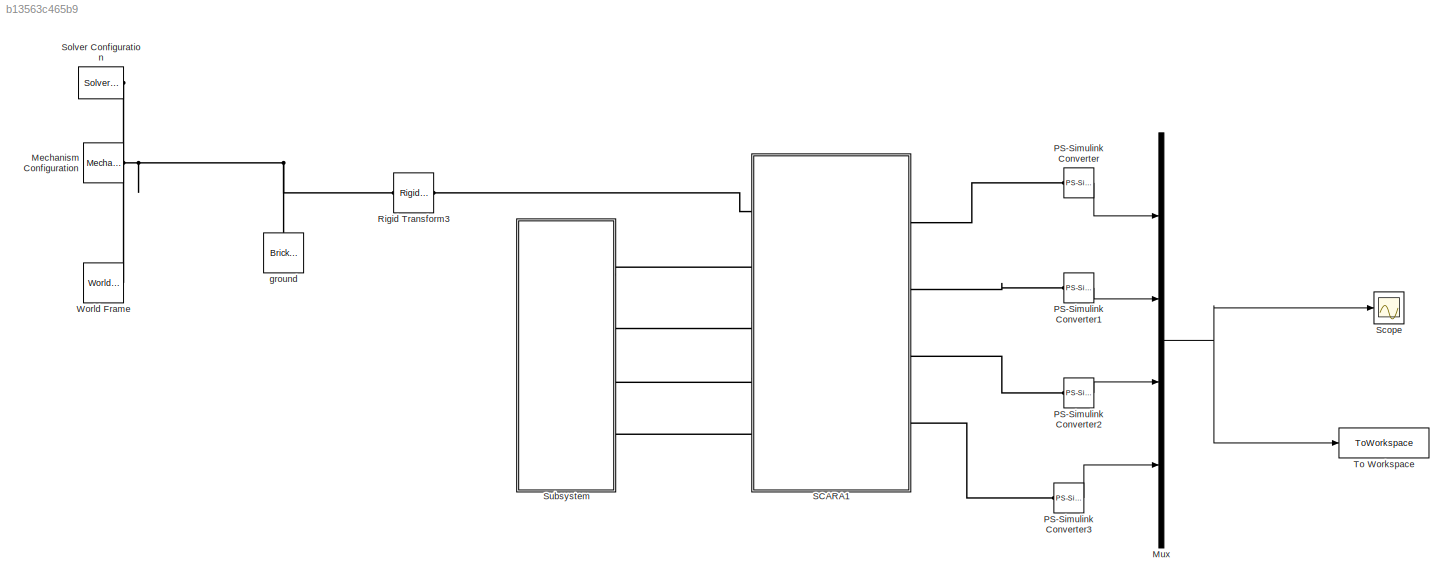
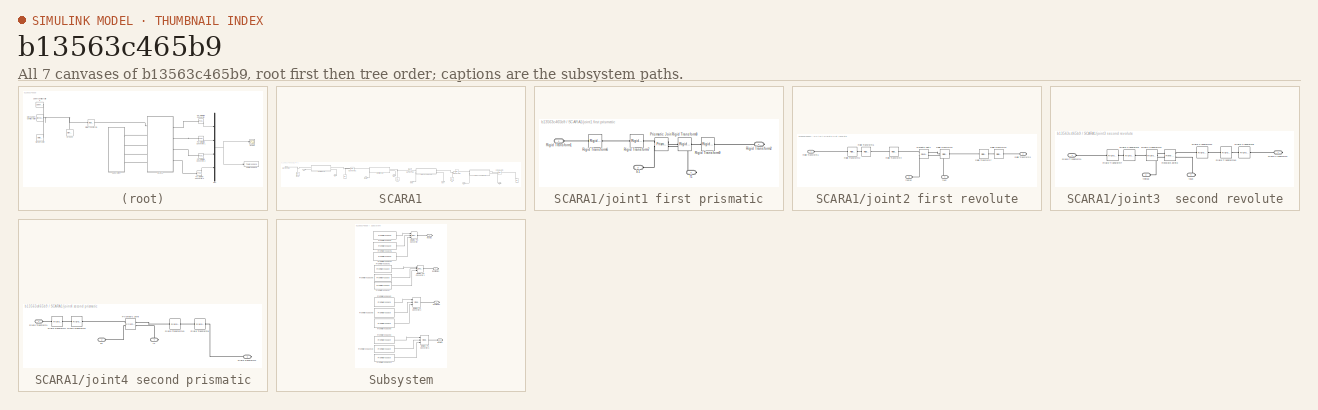
[diagram: thumbnail index - all 7 canvases of the model, root first then tree order]
MODEL slx_b13563c465b9
KIND model
CONFIG AbsTol = auto
CONFIG EnableMultiTasking = off
CONFIG FixedStep = 0.001
CONFIG MaxStep = auto
CONFIG MinStep = auto
CONFIG RelTol = 1e-3
CONFIG SampleTimeConstraint = Unconstrained
CONFIG SolverName = VariableStepAuto
CONFIG StartTime = 0.0
CONFIG StopTime = tf
BLOCK [Reference] Mechanism Configuration  REF=sm_lib/Utilities/Mechanism
Configuration
  Ports = [0, 0, 0, 0, 0, 0, 1]
  SourceBlock = sm_lib/Utilities/Mechanism\nConfiguration
  SourceProductBaseCode = MS
  SourceType = Mechanism\nConfiguration
BLOCK [Mux] Mux
  DisplayOption = bar
  Ports = [4, 1]
BLOCK [Reference] PS-Simulink Converter  REF=nesl_utility/PS-Simulink
Converter
  Ports = [0, 1, 0, 0, 0, 1]
  SourceBlock = nesl_utility/PS-Simulink\nConverter
  SourceProductBaseCode = PW,SS
  SourceType = PS-Simulink\nConverter
BLOCK [Reference] PS-Simulink Converter1  REF=nesl_utility/PS-Simulink
Converter
  Ports = [0, 1, 0, 0, 0, 1]
  SourceBlock = nesl_utility/PS-Simulink\nConverter
  SourceProductBaseCode = PW,SS
  SourceType = PS-Simulink\nConverter
BLOCK [Reference] PS-Simulink Converter2  REF=nesl_utility/PS-Simulink
Converter
  Ports = [0, 1, 0, 0, 0, 1]
  SourceBlock = nesl_utility/PS-Simulink\nConverter
  SourceProductBaseCode = PW,SS
  SourceType = PS-Simulink\nConverter
BLOCK [Reference] PS-Simulink Converter3  REF=nesl_utility/PS-Simulink
Converter
  Ports = [0, 1, 0, 0, 0, 1]
  SourceBlock = nesl_utility/PS-Simulink\nConverter
  SourceProductBaseCode = PW,SS
  SourceType = PS-Simulink\nConverter
BLOCK [Reference] Rigid Transform3  REF=sm_lib/Frames and
Transforms/Rigid
Transform
  Ports = [0, 0, 0, 0, 0, 1, 1]
  SourceBlock = sm_lib/Frames and\nTransforms/Rigid\nTransform
  SourceProductBaseCode = MS
  SourceType = Rigid\nTransform
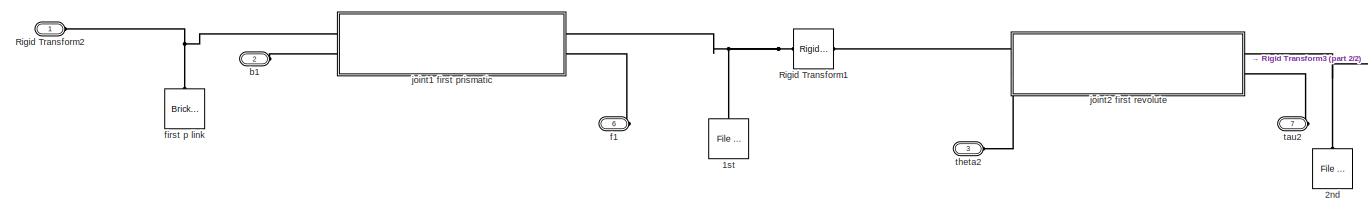
[diagram: SCARA1 - part 1/2, left side, full height]
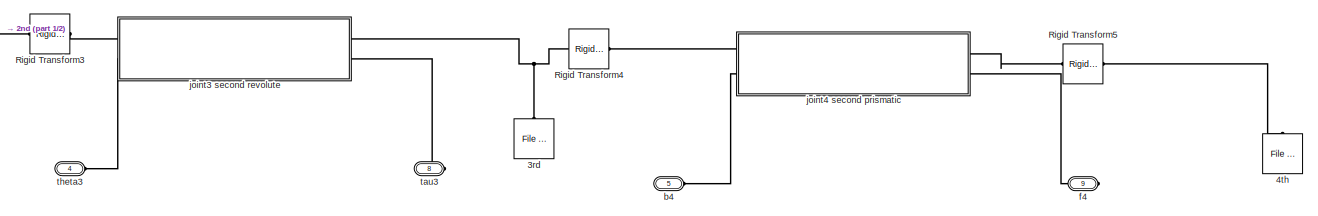
[diagram: SCARA1 - part 2/2, right side, full height]
BLOCK [SubSystem] SCARA1
  Ports = [0, 0, 0, 0, 0, 5, 4]
  RequestExecContextInheritance = off
BLOCK [Reference] SCARA1/1st  REF=sm_lib/Body Elements/File Solid
  NameLocation = right
  Ports = [0, 0, 0, 0, 0, 0, 1]
  SourceBlock = sm_lib/Body Elements/File Solid
  SourceProductBaseCode = MS
  SourceType = File Solid
BLOCK [Reference] SCARA1/2nd  REF=sm_lib/Body Elements/File Solid
  NameLocation = right
  Ports = [0, 0, 0, 0, 0, 0, 1]
  SourceBlock = sm_lib/Body Elements/File Solid
  SourceProductBaseCode = MS
  SourceType = File Solid
BLOCK [Reference] SCARA1/3rd  REF=sm_lib/Body Elements/File Solid
  NameLocation = right
  Ports = [0, 0, 0, 0, 0, 0, 1]
  SourceBlock = sm_lib/Body Elements/File Solid
  SourceProductBaseCode = MS
  SourceType = File Solid
BLOCK [Reference] SCARA1/4th  REF=sm_lib/Body Elements/File Solid
  NameLocation = right
  Ports = [0, 0, 0, 0, 0, 0, 1]
  SourceBlock = sm_lib/Body Elements/File Solid
  SourceProductBaseCode = MS
  SourceType = File Solid
BLOCK [Reference] SCARA1/Rigid Transform1  REF=sm_lib/Frames and
Transforms/Rigid
Transform
  Ports = [0, 0, 0, 0, 0, 1, 1]
  SourceBlock = sm_lib/Frames and\nTransforms/Rigid\nTransform
  SourceProductBaseCode = MS
  SourceType = Rigid\nTransform
BLOCK [PMIOPort] SCARA1/Rigid Transform2
  Side = Left
BLOCK [Reference] SCARA1/Rigid Transform3  REF=sm_lib/Frames and
Transforms/Rigid
Transform
  Ports = [0, 0, 0, 0, 0, 1, 1]
  SourceBlock = sm_lib/Frames and\nTransforms/Rigid\nTransform
  SourceProductBaseCode = MS
  SourceType = Rigid\nTransform
BLOCK [Reference] SCARA1/Rigid Transform4  REF=sm_lib/Frames and
Transforms/Rigid
Transform
  Ports = [0, 0, 0, 0, 0, 1, 1]
  SourceBlock = sm_lib/Frames and\nTransforms/Rigid\nTransform
  SourceProductBaseCode = MS
  SourceType = Rigid\nTransform
BLOCK [Reference] SCARA1/Rigid Transform5  REF=sm_lib/Frames and
Transforms/Rigid
Transform
  Ports = [0, 0, 0, 0, 0, 1, 1]
  SourceBlock = sm_lib/Frames and\nTransforms/Rigid\nTransform
  SourceProductBaseCode = MS
  SourceType = Rigid\nTransform
BLOCK [PMIOPort] SCARA1/b1
  Port = 2
  Side = Left
BLOCK [PMIOPort] SCARA1/b4
  Port = 5
  Side = Left
BLOCK [PMIOPort] SCARA1/f1
  NameLocation = top
  Port = 6
  Side = Right
BLOCK [PMIOPort] SCARA1/f4
  NameLocation = top
  Port = 9
  Side = Right
BLOCK [Reference] SCARA1/first p link  REF=sm_lib/Body Elements/Brick Solid
  NameLocation = right
  Ports = [0, 0, 0, 0, 0, 0, 1]
  SourceBlock = sm_lib/Body Elements/Brick Solid
  SourceProductBaseCode = MS
  SourceType = Brick Solid
BLOCK [SubSystem] SCARA1/joint1 first prismatic
  Ports = [0, 0, 0, 0, 0, 2, 2]
  RequestExecContextInheritance = off
BLOCK [Reference] SCARA1/joint1 first prismatic/Prismatic Joint  REF=sm_lib/Joints/Prismatic
Joint
  Ports = [0, 0, 0, 0, 0, 2, 2]
  SourceBlock = sm_lib/Joints/Prismatic\nJoint
  SourceProductBaseCode = MS
  SourceType = Prismatic\nJoint
BLOCK [PMIOPort] SCARA1/joint1 first prismatic/Rigid Transform1
  Side = Left
BLOCK [PMIOPort] SCARA1/joint1 first prismatic/Rigid Transform2
  Port = 2
  Side = Right
BLOCK [Reference] SCARA1/joint1 first prismatic/Rigid Transform6  REF=sm_lib/Frames and
Transforms/Rigid
Transform
  Ports = [0, 0, 0, 0, 0, 1, 1]
  SourceBlock = sm_lib/Frames and\nTransforms/Rigid\nTransform
  SourceProductBaseCode = MS
  SourceType = Rigid\nTransform
BLOCK [Reference] SCARA1/joint1 first prismatic/Rigid Transform7  REF=sm_lib/Frames and
Transforms/Rigid
Transform
  Ports = [0, 0, 0, 0, 0, 1, 1]
  SourceBlock = sm_lib/Frames and\nTransforms/Rigid\nTransform
  SourceProductBaseCode = MS
  SourceType = Rigid\nTransform
BLOCK [Reference] SCARA1/joint1 first prismatic/Rigid Transform8  REF=sm_lib/Frames and
Transforms/Rigid
Transform
  Ports = [0, 0, 0, 0, 0, 1, 1]
  SourceBlock = sm_lib/Frames and\nTransforms/Rigid\nTransform
  SourceProductBaseCode = MS
  SourceType = Rigid\nTransform
BLOCK [Reference] SCARA1/joint1 first prismatic/Rigid Transform9  REF=sm_lib/Frames and
Transforms/Rigid
Transform
  Ports = [0, 0, 0, 0, 0, 1, 1]
  SourceBlock = sm_lib/Frames and\nTransforms/Rigid\nTransform
  SourceProductBaseCode = MS
  SourceType = Rigid\nTransform
BLOCK [PMIOPort] SCARA1/joint1 first prismatic/b1
  Port = 3
  Side = Left
BLOCK [PMIOPort] SCARA1/joint1 first prismatic/f1
  NameLocation = top
  Port = 4
  Side = Right
BLOCK [SubSystem] SCARA1/joint2 first revolute
  Ports = [0, 0, 0, 0, 0, 2, 2]
  RequestExecContextInheritance = off
BLOCK [Reference] SCARA1/joint2 first revolute/Revolute Joint1  REF=sm_lib/Joints/Revolute Joint
  Ports = [0, 0, 0, 0, 0, 2, 2]
  SourceBlock = sm_lib/Joints/Revolute Joint
  SourceProductBaseCode = MS
  SourceType = Revolute Joint
BLOCK [PMIOPort] SCARA1/joint2 first revolute/Rigid Transform1
  Side = Left
BLOCK [Reference] SCARA1/joint2 first revolute/Rigid Transform2  REF=sm_lib/Frames and
Transforms/Rigid
Transform
  Ports = [0, 0, 0, 0, 0, 1, 1]
  SourceBlock = sm_lib/Frames and\nTransforms/Rigid\nTransform
  SourceProductBaseCode = MS
  SourceType = Rigid\nTransform
BLOCK [PMIOPort] SCARA1/joint2 first revolute/Rigid Transform3
  Port = 2
  Side = Right
BLOCK [Reference] SCARA1/joint2 first revolute/Rigid Transform4  REF=sm_lib/Frames and
Transforms/Rigid
Transform
  Ports = [0, 0, 0, 0, 0, 1, 1]
  SourceBlock = sm_lib/Frames and\nTransforms/Rigid\nTransform
  SourceProductBaseCode = MS
  SourceType = Rigid\nTransform
BLOCK [Reference] SCARA1/joint2 first revolute/Rigid Transform5  REF=sm_lib/Frames and
Transforms/Rigid
Transform
  Ports = [0, 0, 0, 0, 0, 1, 1]
  SourceBlock = sm_lib/Frames and\nTransforms/Rigid\nTransform
  SourceProductBaseCode = MS
  SourceType = Rigid\nTransform
BLOCK [Reference] SCARA1/joint2 first revolute/Rigid Transform6  REF=sm_lib/Frames and
Transforms/Rigid
Transform
  Ports = [0, 0, 0, 0, 0, 1, 1]
  SourceBlock = sm_lib/Frames and\nTransforms/Rigid\nTransform
  SourceProductBaseCode = MS
  SourceType = Rigid\nTransform
BLOCK [Reference] SCARA1/joint2 first revolute/Rigid Transform7  REF=sm_lib/Frames and
Transforms/Rigid
Transform
  Ports = [0, 0, 0, 0, 0, 1, 1]
  SourceBlock = sm_lib/Frames and\nTransforms/Rigid\nTransform
  SourceProductBaseCode = MS
  SourceType = Rigid\nTransform
BLOCK [Reference] SCARA1/joint2 first revolute/Rigid Transform8  REF=sm_lib/Frames and
Transforms/Rigid
Transform
  Ports = [0, 0, 0, 0, 0, 1, 1]
  SourceBlock = sm_lib/Frames and\nTransforms/Rigid\nTransform
  SourceProductBaseCode = MS
  SourceType = Rigid\nTransform
BLOCK [PMIOPort] SCARA1/joint2 first revolute/tau2
  NameLocation = top
  Port = 4
  Side = Right
BLOCK [PMIOPort] SCARA1/joint2 first revolute/theta2
  Port = 3
  Side = Left
BLOCK [SubSystem] SCARA1/joint3  second revolute
  Ports = [0, 0, 0, 0, 0, 2, 2]
  RequestExecContextInheritance = off
BLOCK [Reference] SCARA1/joint3  second revolute/Revolute Joint3  REF=sm_lib/Joints/Revolute Joint
  Ports = [0, 0, 0, 0, 0, 2, 2]
  SourceBlock = sm_lib/Joints/Revolute Joint
  SourceProductBaseCode = MS
  SourceType = Revolute Joint
BLOCK [PMIOPort] SCARA1/joint3  second revolute/Rigid Transform1
  Side = Left
BLOCK [Reference] SCARA1/joint3  second revolute/Rigid Transform10  REF=sm_lib/Frames and
Transforms/Rigid
Transform
  Ports = [0, 0, 0, 0, 0, 1, 1]
  SourceBlock = sm_lib/Frames and\nTransforms/Rigid\nTransform
  SourceProductBaseCode = MS
  SourceType = Rigid\nTransform
BLOCK [Reference] SCARA1/joint3  second revolute/Rigid Transform11  REF=sm_lib/Frames and
Transforms/Rigid
Transform
  Ports = [0, 0, 0, 0, 0, 1, 1]
  SourceBlock = sm_lib/Frames and\nTransforms/Rigid\nTransform
  SourceProductBaseCode = MS
  SourceType = Rigid\nTransform
BLOCK [Reference] SCARA1/joint3  second revolute/Rigid Transform12  REF=sm_lib/Frames and
Transforms/Rigid
Transform
  Ports = [0, 0, 0, 0, 0, 1, 1]
  SourceBlock = sm_lib/Frames and\nTransforms/Rigid\nTransform
  SourceProductBaseCode = MS
  SourceType = Rigid\nTransform
BLOCK [PMIOPort] SCARA1/joint3  second revolute/Rigid Transform2
  Port = 2
  Side = Right
BLOCK [Reference] SCARA1/joint3  second revolute/Rigid Transform7  REF=sm_lib/Frames and
Transforms/Rigid
Transform
  Ports = [0, 0, 0, 0, 0, 1, 1]
  SourceBlock = sm_lib/Frames and\nTransforms/Rigid\nTransform
  SourceProductBaseCode = MS
  SourceType = Rigid\nTransform
BLOCK [Reference] SCARA1/joint3  second revolute/Rigid Transform8  REF=sm_lib/Frames and
Transforms/Rigid
Transform
  Ports = [0, 0, 0, 0, 0, 1, 1]
  SourceBlock = sm_lib/Frames and\nTransforms/Rigid\nTransform
  SourceProductBaseCode = MS
  SourceType = Rigid\nTransform
BLOCK [Reference] SCARA1/joint3  second revolute/Rigid Transform9  REF=sm_lib/Frames and
Transforms/Rigid
Transform
  Ports = [0, 0, 0, 0, 0, 1, 1]
  SourceBlock = sm_lib/Frames and\nTransforms/Rigid\nTransform
  SourceProductBaseCode = MS
  SourceType = Rigid\nTransform
BLOCK [PMIOPort] SCARA1/joint3  second revolute/tau3
  NameLocation = top
  Port = 4
  Side = Right
BLOCK [PMIOPort] SCARA1/joint3  second revolute/theta3
  Port = 3
  Side = Left
BLOCK [SubSystem] SCARA1/joint4 second prismatic
  Ports = [0, 0, 0, 0, 0, 2, 2]
  RequestExecContextInheritance = off
BLOCK [Reference] SCARA1/joint4 second prismatic/Prismatic Joint  REF=sm_lib/Joints/Prismatic
Joint
  Ports = [0, 0, 0, 0, 0, 2, 2]
  SourceBlock = sm_lib/Joints/Prismatic\nJoint
  SourceProductBaseCode = MS
  SourceType = Prismatic\nJoint
BLOCK [PMIOPort] SCARA1/joint4 second prismatic/Rigid Transform1
  Side = Left
BLOCK [Reference] SCARA1/joint4 second prismatic/Rigid Transform10  REF=sm_lib/Frames and
Transforms/Rigid
Transform
  Ports = [0, 0, 0, 0, 0, 1, 1]
  SourceBlock = sm_lib/Frames and\nTransforms/Rigid\nTransform
  SourceProductBaseCode = MS
  SourceType = Rigid\nTransform
BLOCK [PMIOPort] SCARA1/joint4 second prismatic/Rigid Transform2
  Port = 3
  Side = Right
BLOCK [Reference] SCARA1/joint4 second prismatic/Rigid Transform7  REF=sm_lib/Frames and
Transforms/Rigid
Transform
  Ports = [0, 0, 0, 0, 0, 1, 1]
  SourceBlock = sm_lib/Frames and\nTransforms/Rigid\nTransform
  SourceProductBaseCode = MS
  SourceType = Rigid\nTransform
BLOCK [Reference] SCARA1/joint4 second prismatic/Rigid Transform8  REF=sm_lib/Frames and
Transforms/Rigid
Transform
  Ports = [0, 0, 0, 0, 0, 1, 1]
  SourceBlock = sm_lib/Frames and\nTransforms/Rigid\nTransform
  SourceProductBaseCode = MS
  SourceType = Rigid\nTransform
BLOCK [Reference] SCARA1/joint4 second prismatic/Rigid Transform9  REF=sm_lib/Frames and
Transforms/Rigid
Transform
  Ports = [0, 0, 0, 0, 0, 1, 1]
  SourceBlock = sm_lib/Frames and\nTransforms/Rigid\nTransform
  SourceProductBaseCode = MS
  SourceType = Rigid\nTransform
BLOCK [PMIOPort] SCARA1/joint4 second prismatic/b4
  Port = 2
  Side = Left
BLOCK [PMIOPort] SCARA1/joint4 second prismatic/f4
  NameLocation = top
  Port = 4
  Side = Right
BLOCK [PMIOPort] SCARA1/tau2
  NameLocation = top
  Port = 7
  Side = Right
BLOCK [PMIOPort] SCARA1/tau3
  NameLocation = top
  Port = 8
  Side = Right
BLOCK [PMIOPort] SCARA1/theta2
  Port = 3
  Side = Left
BLOCK [PMIOPort] SCARA1/theta3
  Port = 4
  Side = Left
BLOCK [Scope] Scope
  Floating = off
  NumInputPorts = 1
  Ports = [1]
  ScopeSpecificationString = Simulink.scopes.TimeScopeBlockCfg('CurrentConfiguration', extmgr.ConfigurationSet(extmgr.Configuration('Core','General UI',true),extmgr.Configuration('Core','Source UI',true),extmgr.Configuration('Sources','WiredSimulink',true),extmgr.Configuration('Visuals','Time Domain',true,'SerializedDisplays',{struct('MinYLimReal','-0.05479','MaxYLimReal','0.49309','YLabelReal','','MinYLimMag','0.00000','MaxY...<+1464ch>
BLOCK [Reference] Solver Configuration  REF=nesl_utility/Solver
Configuration
  Ports = [0, 0, 0, 0, 0, 0, 1]
  SourceBlock = nesl_utility/Solver\nConfiguration
  SourceProductBaseCode = PW,SS
  SourceType = Solver\nConfiguration
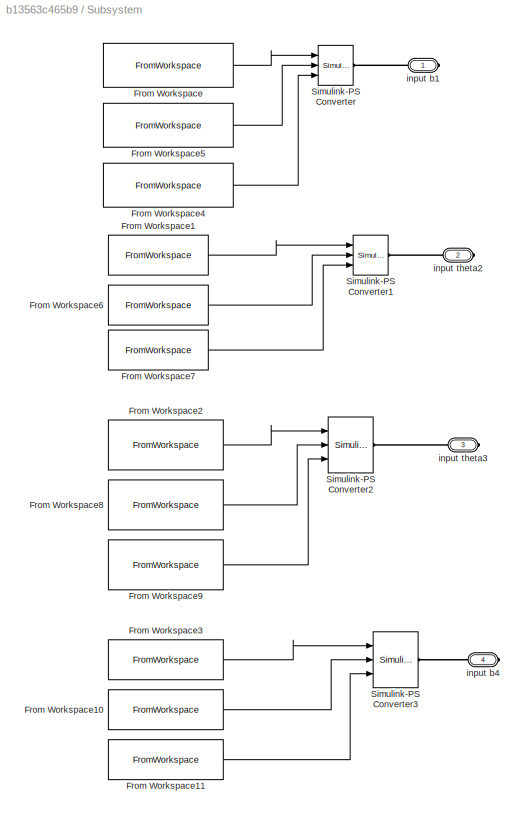
BLOCK [SubSystem] Subsystem
  Ports = [0, 0, 0, 0, 0, 0, 4]
  RequestExecContextInheritance = off
BLOCK [FromWorkspace] Subsystem/From Workspace
  SampleTime = -1
  VariableName = b1_timeseries
BLOCK [FromWorkspace] Subsystem/From Workspace1
  SampleTime = -1
  VariableName = theta2_timeseries
BLOCK [FromWorkspace] Subsystem/From Workspace10
  SampleTime = -1
  VariableName = b4_dot_timeseries
BLOCK [FromWorkspace] Subsystem/From Workspace11
  SampleTime = -1
  VariableName = b4_ddot_timeseries
BLOCK [FromWorkspace] Subsystem/From Workspace2
  SampleTime = -1
  VariableName = theta3_timeseries
BLOCK [FromWorkspace] Subsystem/From Workspace3
  SampleTime = -1
  VariableName = b4_timeseries
BLOCK [FromWorkspace] Subsystem/From Workspace4
  SampleTime = -1
  VariableName = b1_ddot_timeseries
BLOCK [FromWorkspace] Subsystem/From Workspace5
  SampleTime = -1
  VariableName = b1_dot_timeseries
BLOCK [FromWorkspace] Subsystem/From Workspace6
  SampleTime = -1
  VariableName = theta2_dot_timeseries
BLOCK [FromWorkspace] Subsystem/From Workspace7
  SampleTime = -1
  VariableName = theta2_ddot_timeseries
BLOCK [FromWorkspace] Subsystem/From Workspace8
  SampleTime = -1
  VariableName = theta3_dot_timeseries
BLOCK [FromWorkspace] Subsystem/From Workspace9
  SampleTime = -1
  VariableName = theta3_ddot_timeseries
BLOCK [Reference] Subsystem/Simulink-PS Converter  REF=nesl_utility/Simulink-PS
Converter
  Ports = [3, 0, 0, 0, 0, 0, 1]
  SourceBlock = nesl_utility/Simulink-PS\nConverter
  SourceProductBaseCode = PW,SS
  SourceType = Simulink-PS\nConverter
BLOCK [Reference] Subsystem/Simulink-PS Converter1  REF=nesl_utility/Simulink-PS
Converter
  Ports = [3, 0, 0, 0, 0, 0, 1]
  SourceBlock = nesl_utility/Simulink-PS\nConverter
  SourceProductBaseCode = PW,SS
  SourceType = Simulink-PS\nConverter
BLOCK [Reference] Subsystem/Simulink-PS Converter2  REF=nesl_utility/Simulink-PS
Converter
  Ports = [3, 0, 0, 0, 0, 0, 1]
  SourceBlock = nesl_utility/Simulink-PS\nConverter
  SourceProductBaseCode = PW,SS
  SourceType = Simulink-PS\nConverter
BLOCK [Reference] Subsystem/Simulink-PS Converter3  REF=nesl_utility/Simulink-PS
Converter
  Ports = [3, 0, 0, 0, 0, 0, 1]
  SourceBlock = nesl_utility/Simulink-PS\nConverter
  SourceProductBaseCode = PW,SS
  SourceType = Simulink-PS\nConverter
BLOCK [PMIOPort] Subsystem/input b1
  Side = Right
BLOCK [PMIOPort] Subsystem/input b4
  Port = 4
  Side = Right
BLOCK [PMIOPort] Subsystem/input theta2
  Port = 2
  Side = Right
BLOCK [PMIOPort] Subsystem/input theta3
  Port = 3
  Side = Right
BLOCK [ToWorkspace] To Workspace
  FixptAsFi = on
  MaxDataPoints = inf
  Ports = [1]
  SampleTime = -1
  SaveFormat = Timeseries
  VariableName = forcetorque
BLOCK [Reference] World Frame  REF=sm_lib/Frames and
Transforms/World Frame
  Ports = [0, 0, 0, 0, 0, 0, 1]
  SourceBlock = sm_lib/Frames and\nTransforms/World Frame
  SourceProductBaseCode = MS
  SourceType = World Frame
BLOCK [Reference] ground  REF=sm_lib/Body Elements/Brick Solid
  NameLocation = right
  Ports = [0, 0, 0, 0, 0, 0, 1]
  SourceBlock = sm_lib/Body Elements/Brick Solid
  SourceProductBaseCode = MS
  SourceType = Brick Solid
NET Mux:1 -> Scope:1, To Workspace:1
LINE PS-Simulink Converter1:1 -> Mux:2
LINE PS-Simulink Converter2:1 -> Mux:3
LINE PS-Simulink Converter3:1 -> Mux:4
LINE PS-Simulink Converter:1 -> Mux:1
LINE Subsystem/From Workspace10:1 -> Subsystem/Simulink-PS Converter3:2
LINE Subsystem/From Workspace11:1 -> Subsystem/Simulink-PS Converter3:3
LINE Subsystem/From Workspace1:1 -> Subsystem/Simulink-PS Converter1:1
LINE Subsystem/From Workspace2:1 -> Subsystem/Simulink-PS Converter2:1
LINE Subsystem/From Workspace3:1 -> Subsystem/Simulink-PS Converter3:1
LINE Subsystem/From Workspace4:1 -> Subsystem/Simulink-PS Converter:3
LINE Subsystem/From Workspace5:1 -> Subsystem/Simulink-PS Converter:2
LINE Subsystem/From Workspace6:1 -> Subsystem/Simulink-PS Converter1:2
LINE Subsystem/From Workspace7:1 -> Subsystem/Simulink-PS Converter1:3
LINE Subsystem/From Workspace8:1 -> Subsystem/Simulink-PS Converter2:2
LINE Subsystem/From Workspace9:1 -> Subsystem/Simulink-PS Converter2:3
LINE Subsystem/From Workspace:1 -> Subsystem/Simulink-PS Converter:1
PNET net1: Mechanism Configuration:RConn1 -- Rigid Transform3:LConn1 -- Solver Configuration:RConn1 -- World Frame:RConn1 -- ground:RConn1
PLINE PS-Simulink Converter1:LConn1 -- SCARA1:RConn2
PLINE PS-Simulink Converter2:LConn1 -- SCARA1:RConn3
PLINE PS-Simulink Converter3:LConn1 -- SCARA1:RConn4
PLINE PS-Simulink Converter:LConn1 -- SCARA1:RConn1
PLINE Rigid Transform3:RConn1 -- SCARA1:LConn1
PNET net2: SCARA1/1st:RConn1 -- SCARA1/Rigid Transform1:LConn1 -- SCARA1/joint1 first prismatic:RConn1
PNET net3: SCARA1/2nd:RConn1 -- SCARA1/Rigid Transform3:LConn1 -- SCARA1/joint2 first revolute:RConn1
PNET net4: SCARA1/3rd:RConn1 -- SCARA1/Rigid Transform4:LConn1 -- SCARA1/joint3  second revolute:RConn1
PLINE SCARA1/4th:RConn1 -- SCARA1/Rigid Transform5:RConn1
PLINE SCARA1/Rigid Transform1:RConn1 -- SCARA1/joint2 first revolute:LConn1
PNET net5: SCARA1/Rigid Transform2:RConn1 -- SCARA1/first p link:RConn1 -- SCARA1/joint1 first prismatic:LConn1
PLINE SCARA1/Rigid Transform3:RConn1 -- SCARA1/joint3  second revolute:LConn1
PLINE SCARA1/Rigid Transform4:RConn1 -- SCARA1/joint4 second prismatic:LConn1
PLINE SCARA1/Rigid Transform5:LConn1 -- SCARA1/joint4 second prismatic:RConn1
PLINE SCARA1/b1:RConn1 -- SCARA1/joint1 first prismatic:LConn2
PLINE SCARA1/b4:RConn1 -- SCARA1/joint4 second prismatic:LConn2
PLINE SCARA1/f1:RConn1 -- SCARA1/joint1 first prismatic:RConn2
PLINE SCARA1/f4:RConn1 -- SCARA1/joint4 second prismatic:RConn2
PLINE SCARA1/joint1 first prismatic/Prismatic Joint:LConn1 -- SCARA1/joint1 first prismatic/Rigid Transform7:RConn1
PLINE SCARA1/joint1 first prismatic/Prismatic Joint:LConn2 -- SCARA1/joint1 first prismatic/b1:RConn1
PLINE SCARA1/joint1 first prismatic/Prismatic Joint:RConn1 -- SCARA1/joint1 first prismatic/Rigid Transform8:LConn1
PLINE SCARA1/joint1 first prismatic/Prismatic Joint:RConn2 -- SCARA1/joint1 first prismatic/f1:RConn1
PLINE SCARA1/joint1 first prismatic/Rigid Transform1:RConn1 -- SCARA1/joint1 first prismatic/Rigid Transform6:LConn1
PLINE SCARA1/joint1 first prismatic/Rigid Transform2:RConn1 -- SCARA1/joint1 first prismatic/Rigid Transform9:RConn1
PLINE SCARA1/joint1 first prismatic/Rigid Transform6:RConn1 -- SCARA1/joint1 first prismatic/Rigid Transform7:LConn1
PLINE SCARA1/joint1 first prismatic/Rigid Transform8:RConn1 -- SCARA1/joint1 first prismatic/Rigid Transform9:LConn1
PLINE SCARA1/joint2 first revolute/Revolute Joint1:LConn1 -- SCARA1/joint2 first revolute/Rigid Transform4:RConn1
PLINE SCARA1/joint2 first revolute/Revolute Joint1:LConn2 -- SCARA1/joint2 first revolute/theta2:RConn1
PLINE SCARA1/joint2 first revolute/Revolute Joint1:RConn1 -- SCARA1/joint2 first revolute/Rigid Transform8:LConn1
PLINE SCARA1/joint2 first revolute/Revolute Joint1:RConn2 -- SCARA1/joint2 first revolute/tau2:RConn1
PLINE SCARA1/joint2 first revolute/Rigid Transform1:RConn1 -- SCARA1/joint2 first revolute/Rigid Transform2:LConn1
PLINE SCARA1/joint2 first revolute/Rigid Transform2:RConn1 -- SCARA1/joint2 first revolute/Rigid Transform6:LConn1
PLINE SCARA1/joint2 first revolute/Rigid Transform3:RConn1 -- SCARA1/joint2 first revolute/Rigid Transform5:RConn1
PLINE SCARA1/joint2 first revolute/Rigid Transform4:LConn1 -- SCARA1/joint2 first revolute/Rigid Transform6:RConn1
PLINE SCARA1/joint2 first revolute/Rigid Transform5:LConn1 -- SCARA1/joint2 first revolute/Rigid Transform7:RConn1
PLINE SCARA1/joint2 first revolute/Rigid Transform7:LConn1 -- SCARA1/joint2 first revolute/Rigid Transform8:RConn1
PLINE SCARA1/joint2 first revolute:LConn2 -- SCARA1/theta2:RConn1
PLINE SCARA1/joint2 first revolute:RConn2 -- SCARA1/tau2:RConn1
PLINE SCARA1/joint3  second revolute/Revolute Joint3:LConn1 -- SCARA1/joint3  second revolute/Rigid Transform11:RConn1
PLINE SCARA1/joint3  second revolute/Revolute Joint3:LConn2 -- SCARA1/joint3  second revolute/theta3:RConn1
PLINE SCARA1/joint3  second revolute/Revolute Joint3:RConn1 -- SCARA1/joint3  second revolute/Rigid Transform12:LConn1
PLINE SCARA1/joint3  second revolute/Revolute Joint3:RConn2 -- SCARA1/joint3  second revolute/tau3:RConn1
PLINE SCARA1/joint3  second revolute/Rigid Transform10:LConn1 -- SCARA1/joint3  second revolute/Rigid Transform12:RConn1
PLINE SCARA1/joint3  second revolute/Rigid Transform10:RConn1 -- SCARA1/joint3  second revolute/Rigid Transform8:LConn1
PLINE SCARA1/joint3  second revolute/Rigid Transform11:LConn1 -- SCARA1/joint3  second revolute/Rigid Transform9:RConn1
PLINE SCARA1/joint3  second revolute/Rigid Transform1:RConn1 -- SCARA1/joint3  second revolute/Rigid Transform7:LConn1
PLINE SCARA1/joint3  second revolute/Rigid Transform2:RConn1 -- SCARA1/joint3  second revolute/Rigid Transform8:RConn1
PLINE SCARA1/joint3  second revolute/Rigid Transform7:RConn1 -- SCARA1/joint3  second revolute/Rigid Transform9:LConn1
PLINE SCARA1/joint3  second revolute:LConn2 -- SCARA1/theta3:RConn1
PLINE SCARA1/joint3  second revolute:RConn2 -- SCARA1/tau3:RConn1
PLINE SCARA1/joint4 second prismatic/Prismatic Joint:LConn1 -- SCARA1/joint4 second prismatic/Rigid Transform9:RConn1
PLINE SCARA1/joint4 second prismatic/Prismatic Joint:LConn2 -- SCARA1/joint4 second prismatic/b4:RConn1
PLINE SCARA1/joint4 second prismatic/Prismatic Joint:RConn1 -- SCARA1/joint4 second prismatic/Rigid Transform10:LConn1
PLINE SCARA1/joint4 second prismatic/Prismatic Joint:RConn2 -- SCARA1/joint4 second prismatic/f4:RConn1
PLINE SCARA1/joint4 second prismatic/Rigid Transform10:RConn1 -- SCARA1/joint4 second prismatic/Rigid Transform8:LConn1
PLINE SCARA1/joint4 second prismatic/Rigid Transform1:RConn1 -- SCARA1/joint4 second prismatic/Rigid Transform7:LConn1
PLINE SCARA1/joint4 second prismatic/Rigid Transform2:RConn1 -- SCARA1/joint4 second prismatic/Rigid Transform8:RConn1
PLINE SCARA1/joint4 second prismatic/Rigid Transform7:RConn1 -- SCARA1/joint4 second prismatic/Rigid Transform9:LConn1
PLINE SCARA1:LConn2 -- Subsystem:RConn1
PLINE SCARA1:LConn3 -- Subsystem:RConn2
PLINE SCARA1:LConn4 -- Subsystem:RConn3
PLINE SCARA1:LConn5 -- Subsystem:RConn4
PLINE Subsystem/Simulink-PS Converter1:RConn1 -- Subsystem/input theta2:RConn1
PLINE Subsystem/Simulink-PS Converter2:RConn1 -- Subsystem/input theta3:RConn1
PLINE Subsystem/Simulink-PS Converter3:RConn1 -- Subsystem/input b4:RConn1
PLINE Subsystem/Simulink-PS Converter:RConn1 -- Subsystem/input b1:RConn1
note: NET lines group one-source signal fan-out (src -> all destinations, sorted); 1:1 wires keep LINE; PNET lines group multi-terminal physical nets as a canonical sorted terminal list (undirected conserving connections); 2-terminal nets keep the pairwise PLINE form
